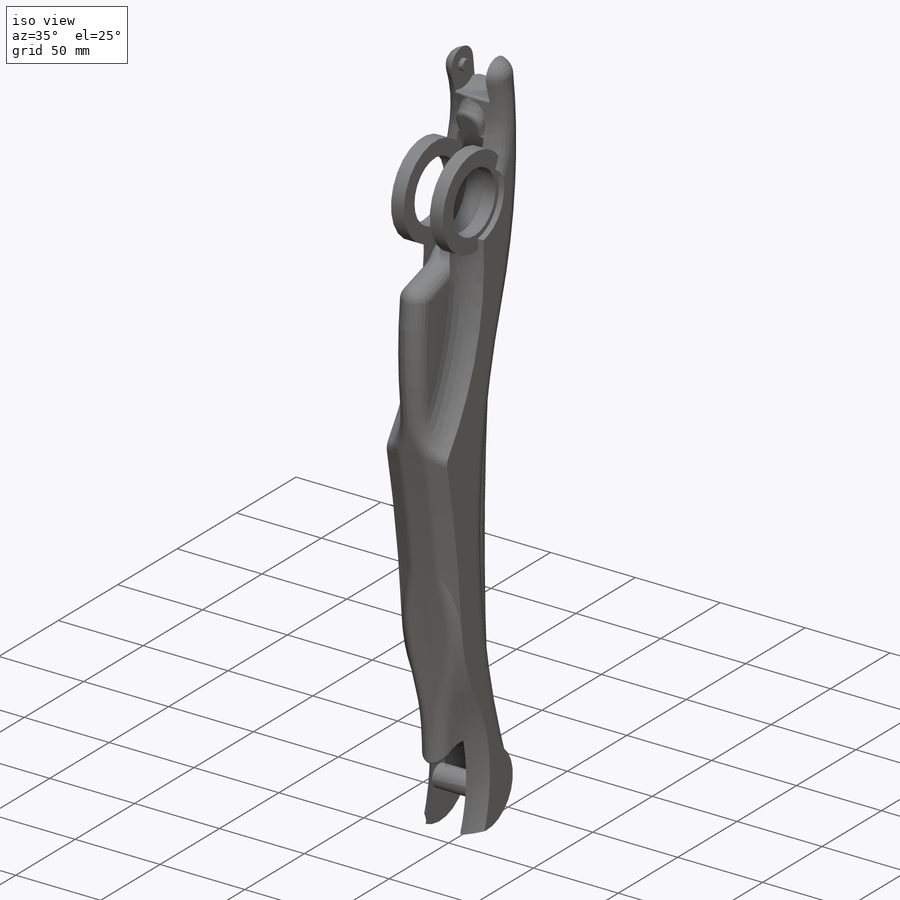
[diagram: iso view]
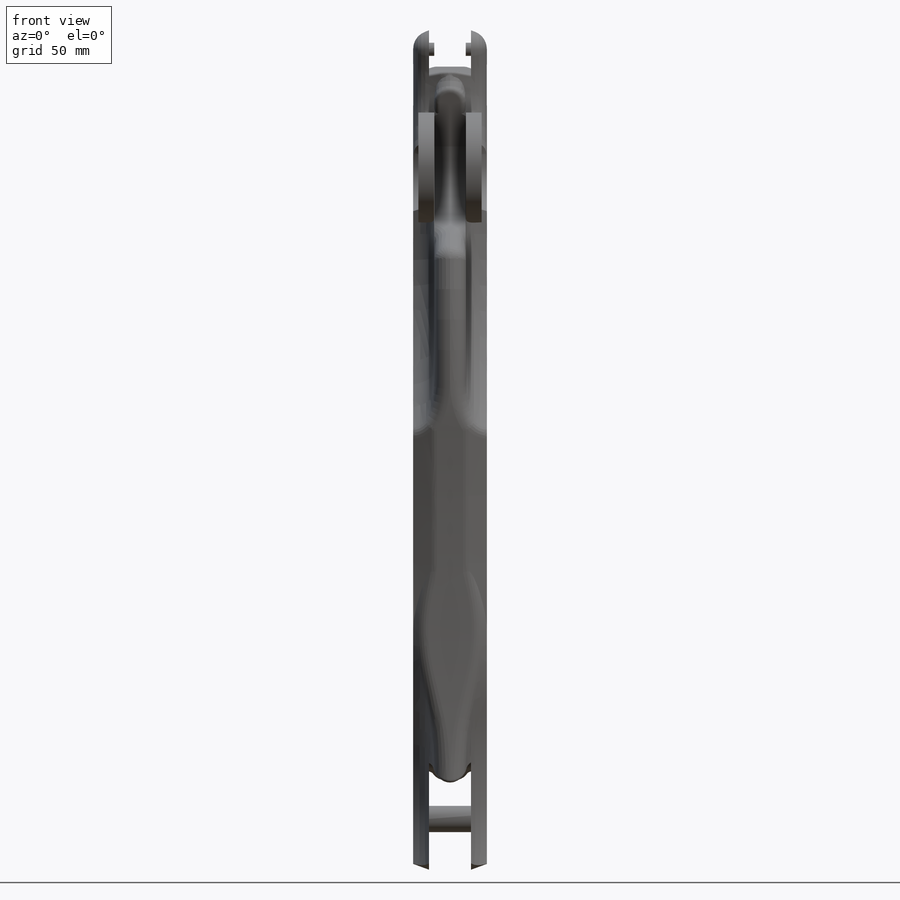
[diagram: front view]
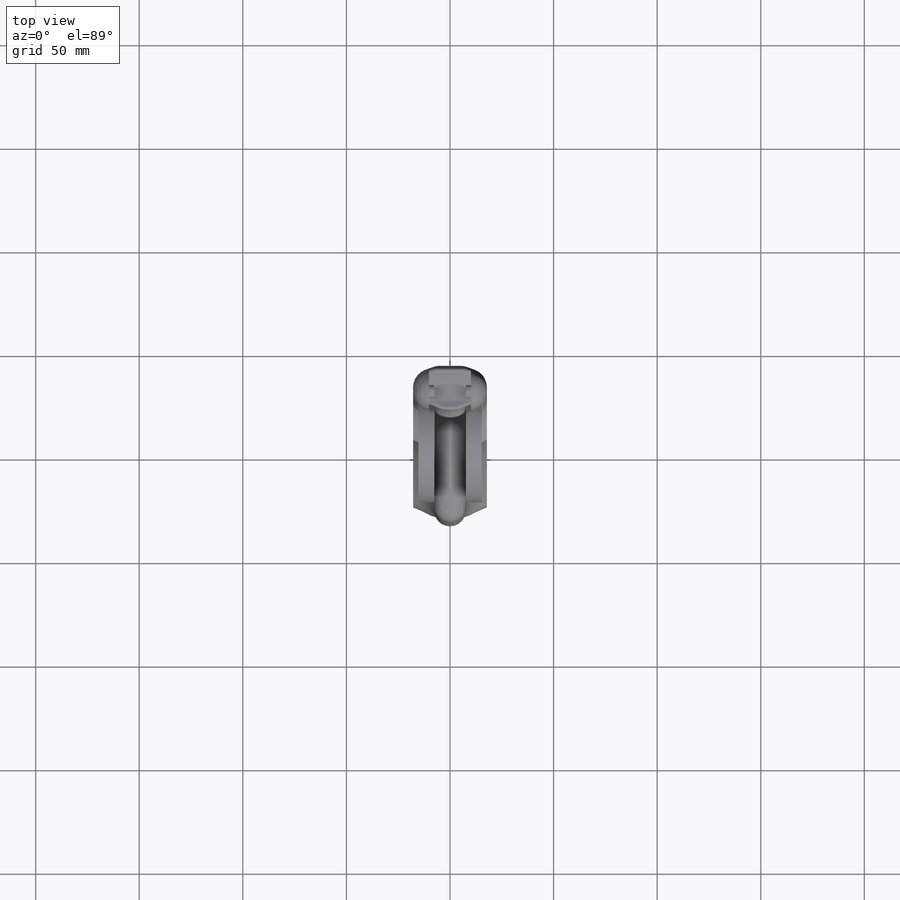
[diagram: top view]
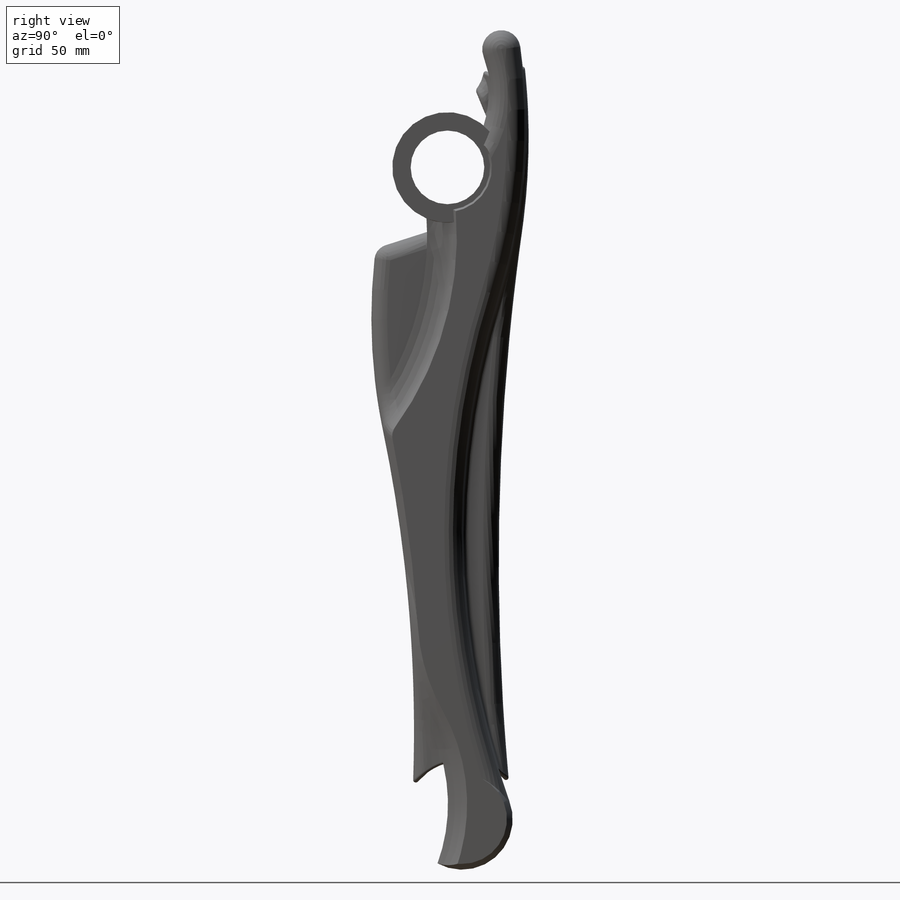
[diagram: right view]
SOLIDWORKS PART (.sldprt)
format: sldprt  version: not decoded by parser v0  size: 906,752 bytes
history: native  units: mm
features: fillet x11, sketch x8, extrude x5, cut_extrude x3, mirror x2, material x1 (+13 scaffold rows collapsed)
feature tree (43):
  scaffold x13  (default folders/planes/origin — collapsed)
  material  "Material <not specified>"
  sketch  "Sketch1"  dims[D1=35.56mm D2=53.34mm]
  extrude  "Boss-Extrude2"  Depth=30.48mm
  sketch  "Sketch2"  dims[c1.D6=10.16mm c1.D10=1143.0mm c1.D12=25.4mm c1.D15=711.2mm c1.D16=266.7mm c1.D1=304.8mm c1.D2=6.35mm c1.D3=15.24mm c1.D4=20.32mm c1.D5=10.16mm c1.D7=5.08mm c1.D8=88.9mm c1.D9=30.48mm c1.D11=127.0mm c1.D13=17.78mm c2.D13=15.24mm c2.D14=~23.390654mm c3.D13=15.24mm c3.D14=17.78mm]
  extrude  "Boss-Extrude3"  Depth=15.24mm
  sketch  "Sketch3"  dims[D2=88.9mm D3=152.4mm D6=381.0mm D1=40.64mm D4=11.43mm D5=120.65mm]
  extrude  "Boss-Extrude4"  Depth=10.16mm
  mirror  "Mirror1"
  fillet  "Fillet1"  Radius=15.24mm
  fillet  "Fillet2"  Radius=7.62mm
  fillet  "Fillet3"  Radius=25.4mm
  fillet  "Fillet4"  Radius=7.62mm
  fillet  "Fillet5"  Radius=2.54mm
  fillet  "Fillet6"  Radius=8.89mm
  fillet  "Fillet7"  Radius=7.62mm
  sketch  "Sketch4"  dims[c1.D1=~73.219645mm c2.D1=120.0deg c2.D2=10.16mm c2.D3=25.4mm]
  cut_extrude  "Cut-Extrude1"  Depth=15.24mm
  fillet  "Fillet8"  Radius=7.62mm
  fillet  "Fillet9"  Radius=2.54mm
  sketch  "Sketch5"  dims[D1=25.4mm]
  cut_extrude  "Cut-Extrude2"  Depth=20.32mm
  fillet  "Fillet10"  Radius=1.27mm
  sketch  "Sketch6"  dims[D1=6.35mm]
  extrude  "Boss-Extrude5"  Depth=2.54mm
  mirror  "Mirror2"
  sketch  "Sketch7"  dims[D1=55.88mm]
  cut_extrude  "Cut-Extrude3"  Depth=20.32mm
  sketch  "Sketch8"  dims[D1=12.7mm]
  extrude  "Boss-Extrude6"  Depth=20.32mm
  fillet  "Fillet11"  Radius=1.27mm
decode coverage: 27 of 29 modeling features carry decoded parameters
note: ~ marks probable driven/reference dimensions
note: suppression state not decoded; provenance and decode notes live in map.json
